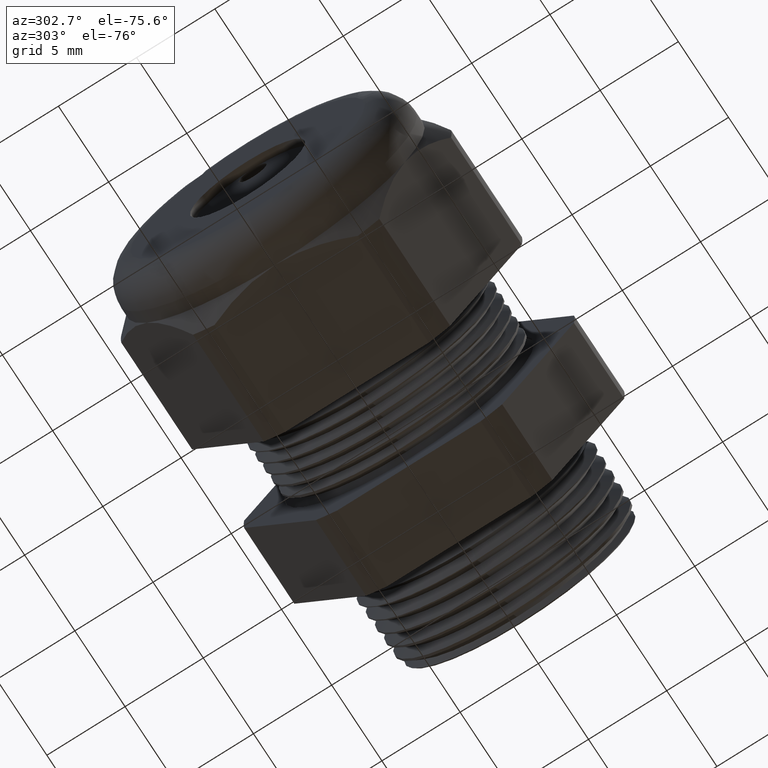
[diagram: clean part render]
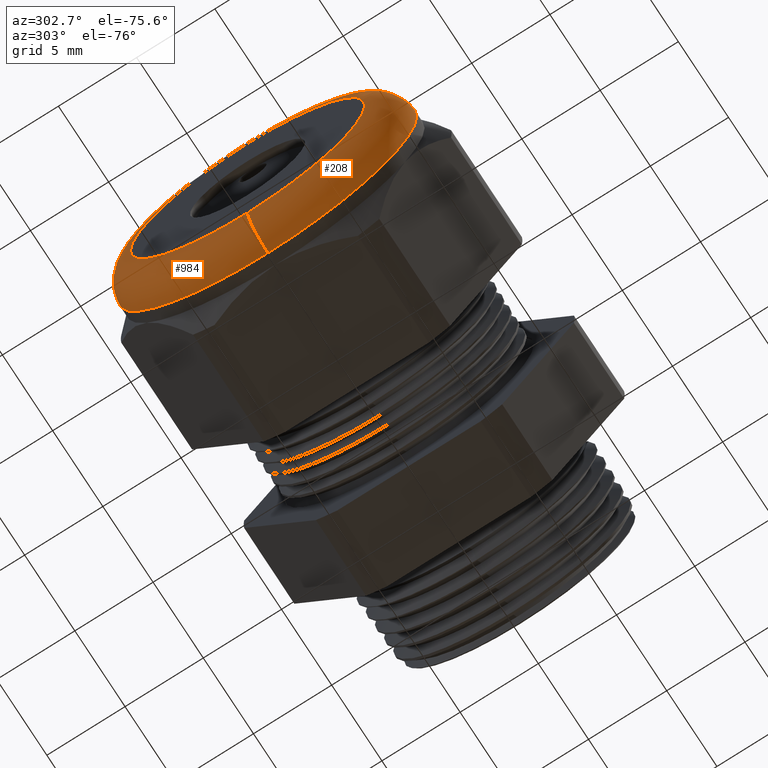
[diagram: same view with one multi-face feature highlighted, each face labeled with its STEP entity id]
A machine part, auxiliary view. The highlighted faces form ONE feature: a constant-radius fillet chain: 2 tangent blend faces with common blend radius 2.032 mm. The faces share edges in the B-rep.
Their STEP definitions:
[1] entity #208 (Torus):
#208 = ADVANCED_FACE ( 'NONE', ( #1492 ), #1491, .T. ) ;
#209 = EDGE_LOOP ( 'NONE', ( #266, #267, #268, #269 ) ) ;
#266 = ORIENTED_EDGE ( 'NONE', *, *, #1025, .F. ) ;
#267 = ORIENTED_EDGE ( 'NONE', *, *, #3694, .F. ) ;
#268 = ORIENTED_EDGE ( 'NONE', *, *, #967, .T. ) ;
#269 = ORIENTED_EDGE ( 'NONE', *, *, #3643, .F. ) ;
#967 = EDGE_CURVE ( 'NONE', #1023, #1029, #2823, .T. ) ;
#1022 = VERTEX_POINT ( 'NONE', #2909 ) ;
#1023 = VERTEX_POINT ( 'NONE', #2908 ) ;
#1025 = EDGE_CURVE ( 'NONE', #1022, #1026, #2907, .T. ) ;
#1026 = VERTEX_POINT ( 'NONE', #2902 ) ;
#1029 = VERTEX_POINT ( 'NONE', #2896 ) ;
#1487 = DIRECTION ( 'NONE',  ( 0.0000000000000000000, 0.0000000000000000000, 1.000000000000000000 ) ) ;
#1488 = DIRECTION ( 'NONE',  ( -1.000000000000000000, 0.0000000000000000000, 0.0000000000000000000 ) ) ;
#1489 = CARTESIAN_POINT ( 'NONE',  ( -1.059999999999999600, 0.0000000000000000000, 0.0000000000000000000 ) ) ;
#1490 = AXIS2_PLACEMENT_3D ( 'NONE', #1489, #1488, #1487 ) ;
#1491 = TOROIDAL_SURFACE ( 'NONE', #1490, 0.2950000000000001500, 0.08000000000000000200 ) ;
#1492 = FACE_OUTER_BOUND ( 'NONE', #209, .T. ) ;
#2819 = DIRECTION ( 'NONE',  ( 0.0000000000000000000, 0.0000000000000000000, -1.000000000000000000 ) ) ;
#2820 = DIRECTION ( 'NONE',  ( 0.0000000000000000000, -1.000000000000000000, 0.0000000000000000000 ) ) ;
#2821 = CARTESIAN_POINT ( 'NONE',  ( -1.059999999999999600, 0.0000000000000000000, 0.2950000000000001500 ) ) ;
#2822 = AXIS2_PLACEMENT_3D ( 'NONE', #2821, #2820, #2819 ) ;
#2823 = CIRCLE ( 'NONE', #2822, 0.08000000000000000200 ) ;
#2896 = CARTESIAN_POINT ( 'NONE',  ( -1.139999999999999700, 0.0000000000000000000, 0.2950000000000001500 ) ) ;
#2902 = CARTESIAN_POINT ( 'NONE',  ( -1.139999999999999700, 4.102566777143635900E-017, -0.2950000000000001500 ) ) ;
#2903 = DIRECTION ( 'NONE',  ( 0.0000000000000000000, -1.224646799147353500E-016, 1.000000000000000000 ) ) ;
#2904 = DIRECTION ( 'NONE',  ( 0.0000000000000000000, 1.000000000000000000, 1.224646799147353200E-016 ) ) ;
#2905 = CARTESIAN_POINT ( 'NONE',  ( -1.059999999999999600, 3.612708057484693800E-017, -0.2950000000000001500 ) ) ;
#2906 = AXIS2_PLACEMENT_3D ( 'NONE', #2905, #2904, #2903 ) ;
#2907 = CIRCLE ( 'NONE', #2906, 0.08000000000000000200 ) ;
#2908 = CARTESIAN_POINT ( 'NONE',  ( -1.059999999999999600, 4.592425496802576700E-017, 0.3750000000000001700 ) ) ;
#2909 = CARTESIAN_POINT ( 'NONE',  ( -1.059999999999999600, 0.0000000000000000000, -0.3750000000000001700 ) ) ;
#3167 = DIRECTION ( 'NONE',  ( -1.000000000000000000, 0.0000000000000000000, 0.0000000000000000000 ) ) ;
#3168 = CARTESIAN_POINT ( 'NONE',  ( -1.139999999999999700, 0.0000000000000000000, 0.0000000000000000000 ) ) ;
#3169 = AXIS2_PLACEMENT_3D ( 'NONE', #3168, #3167, #3229 ) ;
#3170 = CIRCLE ( 'NONE', #3169, 0.2950000000000001500 ) ;
#3229 = DIRECTION ( 'NONE',  ( 0.0000000000000000000, 0.0000000000000000000, 1.000000000000000000 ) ) ;
#3316 = DIRECTION ( 'NONE',  ( 0.0000000000000000000, 0.0000000000000000000, 1.000000000000000000 ) ) ;
#3317 = DIRECTION ( 'NONE',  ( 1.000000000000000000, 0.0000000000000000000, 0.0000000000000000000 ) ) ;
#3318 = CARTESIAN_POINT ( 'NONE',  ( -1.059999999999999600, 0.0000000000000000000, 0.0000000000000000000 ) ) ;
#3319 = AXIS2_PLACEMENT_3D ( 'NONE', #3318, #3317, #3316 ) ;
#3320 = CIRCLE ( 'NONE', #3319, 0.3750000000000001700 ) ;
#3643 = EDGE_CURVE ( 'NONE', #1026, #1029, #3170, .T. ) ;
#3694 = EDGE_CURVE ( 'NONE', #1023, #1022, #3320, .T. ) ;
[2] entity #984 (Torus):
#967 = EDGE_CURVE ( 'NONE', #1023, #1029, #2823, .T. ) ;
#984 = ADVANCED_FACE ( 'NONE', ( #2795 ), #2794, .T. ) ;
#985 = EDGE_LOOP ( 'NONE', ( #1020, #1024, #1027, #1030 ) ) ;
#1020 = ORIENTED_EDGE ( 'NONE', *, *, #1021, .F. ) ;
#1021 = EDGE_CURVE ( 'NONE', #1022, #1023, #2913, .T. ) ;
#1022 = VERTEX_POINT ( 'NONE', #2909 ) ;
#1023 = VERTEX_POINT ( 'NONE', #2908 ) ;
#1024 = ORIENTED_EDGE ( 'NONE', *, *, #1025, .T. ) ;
#1025 = EDGE_CURVE ( 'NONE', #1022, #1026, #2907, .T. ) ;
#1026 = VERTEX_POINT ( 'NONE', #2902 ) ;
#1027 = ORIENTED_EDGE ( 'NONE', *, *, #1028, .F. ) ;
#1028 = EDGE_CURVE ( 'NONE', #1029, #1026, #2901, .T. ) ;
#1029 = VERTEX_POINT ( 'NONE', #2896 ) ;
#1030 = ORIENTED_EDGE ( 'NONE', *, *, #967, .F. ) ;
#2791 = DIRECTION ( 'NONE',  ( -1.000000000000000000, 0.0000000000000000000, 0.0000000000000000000 ) ) ;
#2792 = CARTESIAN_POINT ( 'NONE',  ( -1.059999999999999600, 0.0000000000000000000, 0.0000000000000000000 ) ) ;
#2793 = AXIS2_PLACEMENT_3D ( 'NONE', #2792, #2791, #2856 ) ;
#2794 = TOROIDAL_SURFACE ( 'NONE', #2793, 0.2950000000000001500, 0.08000000000000000200 ) ;
#2795 = FACE_OUTER_BOUND ( 'NONE', #985, .T. ) ;
#2819 = DIRECTION ( 'NONE',  ( 0.0000000000000000000, 0.0000000000000000000, -1.000000000000000000 ) ) ;
#2820 = DIRECTION ( 'NONE',  ( 0.0000000000000000000, -1.000000000000000000, 0.0000000000000000000 ) ) ;
#2821 = CARTESIAN_POINT ( 'NONE',  ( -1.059999999999999600, 0.0000000000000000000, 0.2950000000000001500 ) ) ;
#2822 = AXIS2_PLACEMENT_3D ( 'NONE', #2821, #2820, #2819 ) ;
#2823 = CIRCLE ( 'NONE', #2822, 0.08000000000000000200 ) ;
#2856 = DIRECTION ( 'NONE',  ( 0.0000000000000000000, 0.0000000000000000000, 1.000000000000000000 ) ) ;
#2858 = CARTESIAN_POINT ( 'NONE',  ( -1.059999999999999600, 0.0000000000000000000, 0.0000000000000000000 ) ) ;
#2896 = CARTESIAN_POINT ( 'NONE',  ( -1.139999999999999700, 0.0000000000000000000, 0.2950000000000001500 ) ) ;
#2897 = DIRECTION ( 'NONE',  ( 0.0000000000000000000, 0.0000000000000000000, 1.000000000000000000 ) ) ;
#2898 = DIRECTION ( 'NONE',  ( -1.000000000000000000, 0.0000000000000000000, 0.0000000000000000000 ) ) ;
#2899 = CARTESIAN_POINT ( 'NONE',  ( -1.139999999999999700, 0.0000000000000000000, 0.0000000000000000000 ) ) ;
#2900 = AXIS2_PLACEMENT_3D ( 'NONE', #2899, #2898, #2897 ) ;
#2901 = CIRCLE ( 'NONE', #2900, 0.2950000000000001500 ) ;
#2902 = CARTESIAN_POINT ( 'NONE',  ( -1.139999999999999700, 4.102566777143635900E-017, -0.2950000000000001500 ) ) ;
#2903 = DIRECTION ( 'NONE',  ( 0.0000000000000000000, -1.224646799147353500E-016, 1.000000000000000000 ) ) ;
#2904 = DIRECTION ( 'NONE',  ( 0.0000000000000000000, 1.000000000000000000, 1.224646799147353200E-016 ) ) ;
#2905 = CARTESIAN_POINT ( 'NONE',  ( -1.059999999999999600, 3.612708057484693800E-017, -0.2950000000000001500 ) ) ;
#2906 = AXIS2_PLACEMENT_3D ( 'NONE', #2905, #2904, #2903 ) ;
#2907 = CIRCLE ( 'NONE', #2906, 0.08000000000000000200 ) ;
#2908 = CARTESIAN_POINT ( 'NONE',  ( -1.059999999999999600, 4.592425496802576700E-017, 0.3750000000000001700 ) ) ;
#2909 = CARTESIAN_POINT ( 'NONE',  ( -1.059999999999999600, 0.0000000000000000000, -0.3750000000000001700 ) ) ;
#2910 = DIRECTION ( 'NONE',  ( 0.0000000000000000000, 0.0000000000000000000, 1.000000000000000000 ) ) ;
#2911 = DIRECTION ( 'NONE',  ( 1.000000000000000000, 0.0000000000000000000, 0.0000000000000000000 ) ) ;
#2912 = AXIS2_PLACEMENT_3D ( 'NONE', #2858, #2911, #2910 ) ;
#2913 = CIRCLE ( 'NONE', #2912, 0.3750000000000001700 ) ;